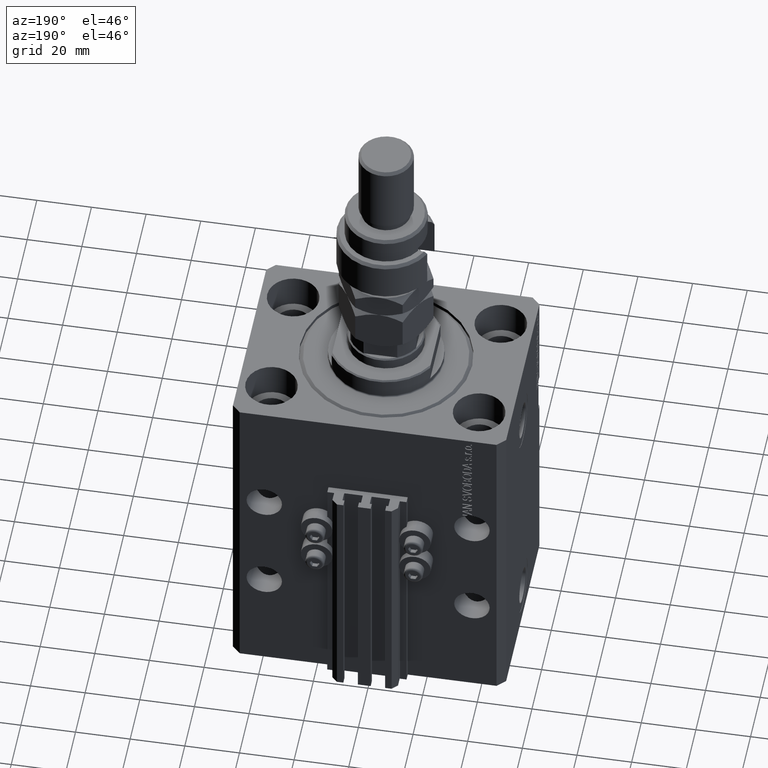
[diagram: clean part render]
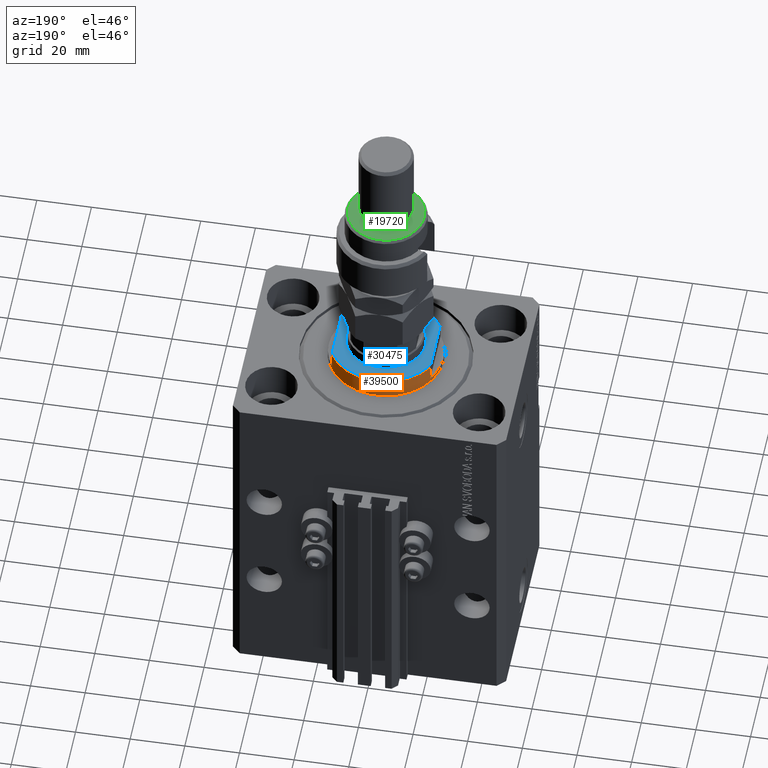
[diagram: same view with three faces highlighted in distinct colors, each labeled with its STEP entity id]
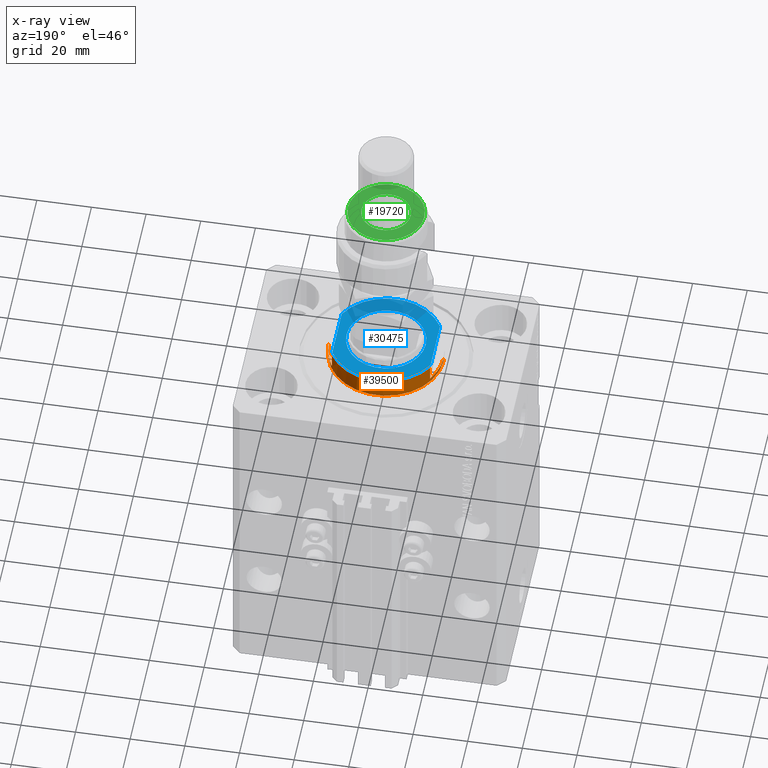
[diagram: x-ray of the same camera — body ghosted, the three highlighted faces saturated]
A machine part, auxiliary view with three faces highlighted in distinct colors.
The next image is the same camera in x-ray (body ghosted, the three faces saturated) — at least one of them is partly hidden behind the body in this view.
Their STEP definitions:

[orange] entity #39500 — the highlighted cylindrical surface (partial cylindrical patch) has radius 21 mm, axis along (0, 0, -1).
#304 = CARTESIAN_POINT ( 'NONE',  ( 21.00000000000000000, 0.000000000000000000, -8.000000000000000000 ) ) ;
#770 = DIRECTION ( 'NONE',  ( -0.000000000000000000, -0.000000000000000000, 1.000000000000000000 ) ) ;
#1752 = DIRECTION ( 'NONE',  ( -1.000000000000000000, 0.000000000000000000, 0.000000000000000000 ) ) ;
#2416 = ORIENTED_EDGE ( 'NONE', *, *, #39288, .T. ) ;
#3016 = DIRECTION ( 'NONE',  ( -0.000000000000000000, -0.000000000000000000, 1.000000000000000000 ) ) ;
#3527 = LINE ( 'NONE', #3777, #37052 ) ;
#3777 = CARTESIAN_POINT ( 'NONE',  ( -21.00000000000000000, 2.571758278209441661E-15, -8.000000000000000000 ) ) ;
#4289 = CARTESIAN_POINT ( 'NONE',  ( 0.000000000000000000, 0.000000000000000000, -2.000000000000000000 ) ) ;
#6245 = CARTESIAN_POINT ( 'NONE',  ( 18.00000000000000000, 10.81665382639197048, -7.500000000000016875 ) ) ;
#6591 = VERTEX_POINT ( 'NONE', #15605 ) ;
#6600 = CARTESIAN_POINT ( 'NONE',  ( -18.00000000000000000, 10.81665382639197048, -2.000000000000000000 ) ) ;
#6964 = AXIS2_PLACEMENT_3D ( 'NONE', #18101, #33489, #34008 ) ;
#6979 = DIRECTION ( 'NONE',  ( -0.000000000000000000, -0.000000000000000000, 1.000000000000000000 ) ) ;
#9525 = CARTESIAN_POINT ( 'NONE',  ( 0.000000000000000000, 0.000000000000000000, -0.5000000000000004441 ) ) ;
#9574 = CIRCLE ( 'NONE', #10382, 21.00000000000000000 ) ;
#10382 = AXIS2_PLACEMENT_3D ( 'NONE', #9525, #49176, #45794 ) ;
#11893 = CYLINDRICAL_SURFACE ( 'NONE', #27830, 21.00000000000000000 ) ;
#12431 = VERTEX_POINT ( 'NONE', #6245 ) ;
#12745 = CIRCLE ( 'NONE', #21897, 21.00000000000000000 ) ;
#12995 = LINE ( 'NONE', #37253, #17026 ) ;
#14977 = ORIENTED_EDGE ( 'NONE', *, *, #37635, .T. ) ;
#15605 = CARTESIAN_POINT ( 'NONE',  ( -18.00000000000000000, 10.81665382639197048, -7.500000000000016875 ) ) ;
#16255 = VERTEX_POINT ( 'NONE', #50721 ) ;
#17026 = VECTOR ( 'NONE', #770, 1000.000000000000000 ) ;
#17460 = EDGE_CURVE ( 'NONE', #44590, #46610, #12745, .T. ) ;
#17492 = VERTEX_POINT ( 'NONE', #6600 ) ;
#18101 = CARTESIAN_POINT ( 'NONE',  ( 0.000000000000000000, 0.000000000000000000, -7.500000000000016875 ) ) ;
#19509 = VECTOR ( 'NONE', #6979, 1000.000000000000000 ) ;
#19913 = DIRECTION ( 'NONE',  ( -1.000000000000000000, 0.000000000000000000, 0.000000000000000000 ) ) ;
#21897 = AXIS2_PLACEMENT_3D ( 'NONE', #29097, #37456, #1752 ) ;
#21913 = DIRECTION ( 'NONE',  ( -0.000000000000000000, -0.000000000000000000, 1.000000000000000000 ) ) ;
#22239 = ORIENTED_EDGE ( 'NONE', *, *, #28836, .F. ) ;
#23600 = CIRCLE ( 'NONE', #6964, 21.00000000000000000 ) ;
#23820 = DIRECTION ( 'NONE',  ( 0.000000000000000000, 0.000000000000000000, -1.000000000000000000 ) ) ;
#25832 = LINE ( 'NONE', #42014, #32577 ) ;
#27788 = DIRECTION ( 'NONE',  ( -0.000000000000000000, -0.000000000000000000, 1.000000000000000000 ) ) ;
#27830 = AXIS2_PLACEMENT_3D ( 'NONE', #31198, #27788, #43213 ) ;
#27854 = CIRCLE ( 'NONE', #50387, 21.00000000000000000 ) ;
#28836 = EDGE_CURVE ( 'NONE', #12431, #44590, #25832, .T. ) ;
#29097 = CARTESIAN_POINT ( 'NONE',  ( 0.000000000000000000, 0.000000000000000000, -2.000000000000000000 ) ) ;
#30389 = CARTESIAN_POINT ( 'NONE',  ( -21.00000000000000000, 2.571758278209441661E-15, -0.5000000000000004441 ) ) ;
#31198 = CARTESIAN_POINT ( 'NONE',  ( 0.000000000000000000, 0.000000000000000000, -8.000000000000000000 ) ) ;
#31861 = ORIENTED_EDGE ( 'NONE', *, *, #17460, .F. ) ;
#32577 = VECTOR ( 'NONE', #21913, 1000.000000000000000 ) ;
#33489 = DIRECTION ( 'NONE',  ( 0.000000000000000000, 0.000000000000000000, 1.000000000000000000 ) ) ;
#33542 = VERTEX_POINT ( 'NONE', #30389 ) ;
#34008 = DIRECTION ( 'NONE',  ( -1.000000000000000000, 0.000000000000000000, 0.000000000000000000 ) ) ;
#34144 = ORIENTED_EDGE ( 'NONE', *, *, #47399, .F. ) ;
#34162 = ORIENTED_EDGE ( 'NONE', *, *, #38731, .F. ) ;
#34183 = CARTESIAN_POINT ( 'NONE',  ( 21.00000000000000000, 0.000000000000000000, -0.5000000000000004441 ) ) ;
#36013 = LINE ( 'NONE', #304, #19509 ) ;
#37052 = VECTOR ( 'NONE', #3016, 1000.000000000000000 ) ;
#37253 = CARTESIAN_POINT ( 'NONE',  ( -18.00000000000000000, 10.81665382639197048, -8.000000000000000000 ) ) ;
#37456 = DIRECTION ( 'NONE',  ( 0.000000000000000000, 0.000000000000000000, -1.000000000000000000 ) ) ;
#37635 = EDGE_CURVE ( 'NONE', #12431, #6591, #23600, .T. ) ;
#38731 = EDGE_CURVE ( 'NONE', #46610, #46192, #36013, .T. ) ;
#39288 = EDGE_CURVE ( 'NONE', #6591, #17492, #12995, .T. ) ;
#39500 = ADVANCED_FACE ( 'NONE', ( #46877 ), #11893, .T. ) ;
#42014 = CARTESIAN_POINT ( 'NONE',  ( 18.00000000000000000, 10.81665382639197048, -8.000000000000000000 ) ) ;
#43213 = DIRECTION ( 'NONE',  ( 1.000000000000000000, 0.000000000000000000, 0.000000000000000000 ) ) ;
#43361 = ORIENTED_EDGE ( 'NONE', *, *, #47326, .T. ) ;
#44504 = CARTESIAN_POINT ( 'NONE',  ( 18.00000000000000000, 10.81665382639197048, -2.000000000000000000 ) ) ;
#44590 = VERTEX_POINT ( 'NONE', #44504 ) ;
#45794 = DIRECTION ( 'NONE',  ( 1.000000000000000000, 0.000000000000000000, 0.000000000000000000 ) ) ;
#46192 = VERTEX_POINT ( 'NONE', #34183 ) ;
#46610 = VERTEX_POINT ( 'NONE', #47608 ) ;
#46877 = FACE_OUTER_BOUND ( 'NONE', #49546, .T. ) ;
#47283 = EDGE_CURVE ( 'NONE', #33542, #46192, #9574, .T. ) ;
#47326 = EDGE_CURVE ( 'NONE', #16255, #33542, #3527, .T. ) ;
#47399 = EDGE_CURVE ( 'NONE', #16255, #17492, #27854, .T. ) ;
#47608 = CARTESIAN_POINT ( 'NONE',  ( 21.00000000000000000, 0.000000000000000000, -2.000000000000000000 ) ) ;
#49176 = DIRECTION ( 'NONE',  ( -0.000000000000000000, -0.000000000000000000, -1.000000000000000000 ) ) ;
#49546 = EDGE_LOOP ( 'NONE', ( #34144, #43361, #50164, #34162, #31861, #22239, #14977, #2416 ) ) ;
#50164 = ORIENTED_EDGE ( 'NONE', *, *, #47283, .T. ) ;
#50387 = AXIS2_PLACEMENT_3D ( 'NONE', #4289, #23820, #19913 ) ;
#50721 = CARTESIAN_POINT ( 'NONE',  ( -21.00000000000000000, 2.571758278209441661E-15, -2.000000000000000000 ) ) ;

[blue] entity #30475 — the highlighted planar face has unit normal (0, 0, 1).
#2128 = AXIS2_PLACEMENT_3D ( 'NONE', #14432, #46275, #10258 ) ;
#2444 = EDGE_LOOP ( 'NONE', ( #24300, #13134, #7355, #41830 ) ) ;
#3155 = DIRECTION ( 'NONE',  ( 0.000000000000000000, -1.000000000000000000, -0.000000000000000000 ) ) ;
#4647 = FACE_BOUND ( 'NONE', #37662, .T. ) ;
#7355 = ORIENTED_EDGE ( 'NONE', *, *, #8114, .T. ) ;
#8030 = DIRECTION ( 'NONE',  ( -1.000000000000000000, 0.000000000000000000, -0.000000000000000000 ) ) ;
#8114 = EDGE_CURVE ( 'NONE', #27491, #23564, #49221, .T. ) ;
#9585 = EDGE_CURVE ( 'NONE', #27847, #35387, #40906, .T. ) ;
#10258 = DIRECTION ( 'NONE',  ( -1.000000000000000000, 0.000000000000000000, 0.000000000000000000 ) ) ;
#11595 = DIRECTION ( 'NONE',  ( -0.000000000000000000, -0.000000000000000000, 1.000000000000000000 ) ) ;
#12111 = LINE ( 'NONE', #43671, #25946 ) ;
#13134 = ORIENTED_EDGE ( 'NONE', *, *, #28986, .T. ) ;
#14432 = CARTESIAN_POINT ( 'NONE',  ( 0.000000000000000000, 0.000000000000000000, -8.000000000000000000 ) ) ;
#16534 = DIRECTION ( 'NONE',  ( -0.000000000000000000, -1.000000000000000000, -0.000000000000000000 ) ) ;
#19290 = LINE ( 'NONE', #35206, #22551 ) ;
#19349 = DIRECTION ( 'NONE',  ( -0.000000000000000000, -0.000000000000000000, 1.000000000000000000 ) ) ;
#19637 = VERTEX_POINT ( 'NONE', #24133 ) ;
#19759 = FACE_OUTER_BOUND ( 'NONE', #2444, .T. ) ;
#21184 = EDGE_CURVE ( 'NONE', #35387, #27847, #50613, .T. ) ;
#22551 = VECTOR ( 'NONE', #3155, 1000.000000000000000 ) ;
#23245 = DIRECTION ( 'NONE',  ( -1.000000000000000000, 0.000000000000000000, 0.000000000000000000 ) ) ;
#23564 = VERTEX_POINT ( 'NONE', #31948 ) ;
#24133 = CARTESIAN_POINT ( 'NONE',  ( 18.00000000000000000, 9.810708435174332109, -8.000000000000000000 ) ) ;
#24206 = AXIS2_PLACEMENT_3D ( 'NONE', #30901, #11595, #35340 ) ;
#24300 = ORIENTED_EDGE ( 'NONE', *, *, #40850, .T. ) ;
#24537 = ORIENTED_EDGE ( 'NONE', *, *, #21184, .T. ) ;
#25357 = VERTEX_POINT ( 'NONE', #49170 ) ;
#25866 = AXIS2_PLACEMENT_3D ( 'NONE', #43590, #35768, #51430 ) ;
#25946 = VECTOR ( 'NONE', #16534, 1000.000000000000000 ) ;
#27477 = CARTESIAN_POINT ( 'NONE',  ( 18.00000000000000000, -9.810708435174332109, -8.000000000000000000 ) ) ;
#27491 = VERTEX_POINT ( 'NONE', #27477 ) ;
#27847 = VERTEX_POINT ( 'NONE', #41747 ) ;
#28603 = CARTESIAN_POINT ( 'NONE',  ( 0.000000000000000000, 0.000000000000000000, -8.000000000000000000 ) ) ;
#28986 = EDGE_CURVE ( 'NONE', #19637, #27491, #19290, .T. ) ;
#29712 = CARTESIAN_POINT ( 'NONE',  ( -14.49999999999999822, 0.000000000000000000, -8.000000000000000000 ) ) ;
#30475 = ADVANCED_FACE ( 'NONE', ( #4647, #19759 ), #51585, .T. ) ;
#30758 = ORIENTED_EDGE ( 'NONE', *, *, #9585, .T. ) ;
#30901 = CARTESIAN_POINT ( 'NONE',  ( 0.000000000000000000, 0.000000000000000000, -8.000000000000000000 ) ) ;
#31677 = AXIS2_PLACEMENT_3D ( 'NONE', #28603, #47677, #8030 ) ;
#31948 = CARTESIAN_POINT ( 'NONE',  ( -18.00000000000000000, -9.810708435174332109, -8.000000000000000000 ) ) ;
#33671 = EDGE_CURVE ( 'NONE', #25357, #23564, #12111, .T. ) ;
#35206 = CARTESIAN_POINT ( 'NONE',  ( 18.00000000000000000, -41.24318125460256113, -8.000000000000000000 ) ) ;
#35340 = DIRECTION ( 'NONE',  ( -1.000000000000000000, 0.000000000000000000, 0.000000000000000000 ) ) ;
#35387 = VERTEX_POINT ( 'NONE', #29712 ) ;
#35768 = DIRECTION ( 'NONE',  ( 0.000000000000000000, 0.000000000000000000, -1.000000000000000000 ) ) ;
#37662 = EDGE_LOOP ( 'NONE', ( #24537, #30758 ) ) ;
#38411 = CARTESIAN_POINT ( 'NONE',  ( 0.000000000000000000, 0.000000000000000000, -8.000000000000000000 ) ) ;
#39585 = CIRCLE ( 'NONE', #2128, 20.50000000000001776 ) ;
#40850 = EDGE_CURVE ( 'NONE', #25357, #19637, #39585, .T. ) ;
#40906 = CIRCLE ( 'NONE', #24206, 14.49999999999999822 ) ;
#41747 = CARTESIAN_POINT ( 'NONE',  ( 14.49999999999999822, 1.775737858763662015E-15, -8.000000000000000000 ) ) ;
#41830 = ORIENTED_EDGE ( 'NONE', *, *, #33671, .F. ) ;
#43590 = CARTESIAN_POINT ( 'NONE',  ( 0.000000000000000000, 0.000000000000000000, -8.000000000000000000 ) ) ;
#43671 = CARTESIAN_POINT ( 'NONE',  ( -18.00000000000000000, -41.24318125460256113, -8.000000000000000000 ) ) ;
#43959 = AXIS2_PLACEMENT_3D ( 'NONE', #38411, #19349, #23245 ) ;
#46275 = DIRECTION ( 'NONE',  ( 0.000000000000000000, 0.000000000000000000, -1.000000000000000000 ) ) ;
#47677 = DIRECTION ( 'NONE',  ( 0.000000000000000000, 0.000000000000000000, -1.000000000000000000 ) ) ;
#49170 = CARTESIAN_POINT ( 'NONE',  ( -18.00000000000000000, 9.810708435174332109, -8.000000000000000000 ) ) ;
#49221 = CIRCLE ( 'NONE', #25866, 20.50000000000001776 ) ;
#50613 = CIRCLE ( 'NONE', #43959, 14.49999999999999822 ) ;
#51430 = DIRECTION ( 'NONE',  ( -1.000000000000000000, 0.000000000000000000, 0.000000000000000000 ) ) ;
#51585 = PLANE ( 'NONE',  #31677 ) ;

[green] entity #19720 — the highlighted planar face has unit normal (0, 0, 1).
#1741 = DIRECTION ( 'NONE',  ( 1.000000000000000000, 0.000000000000000000, 0.000000000000000000 ) ) ;
#2225 = DIRECTION ( 'NONE',  ( 1.000000000000000000, 0.000000000000000000, 0.000000000000000000 ) ) ;
#2505 = DIRECTION ( 'NONE',  ( 0.000000000000000000, 0.000000000000000000, 1.000000000000000000 ) ) ;
#3510 = CIRCLE ( 'NONE', #21779, 9.000000000000000000 ) ;
#4637 = AXIS2_PLACEMENT_3D ( 'NONE', #25689, #41614, #1741 ) ;
#5690 = CIRCLE ( 'NONE', #38149, 9.000000000000000000 ) ;
#5884 = CARTESIAN_POINT ( 'NONE',  ( 0.000000000000000000, 0.000000000000000000, 26.00000000000000355 ) ) ;
#9203 = CARTESIAN_POINT ( 'NONE',  ( 0.000000000000000000, 0.000000000000000000, 26.00000000000000355 ) ) ;
#9524 = FACE_OUTER_BOUND ( 'NONE', #48374, .T. ) ;
#10067 = ORIENTED_EDGE ( 'NONE', *, *, #29979, .F. ) ;
#13441 = FACE_BOUND ( 'NONE', #20370, .T. ) ;
#13854 = CARTESIAN_POINT ( 'NONE',  ( -13.99999999999997513, 0.000000000000000000, 26.00000000000000355 ) ) ;
#14054 = CARTESIAN_POINT ( 'NONE',  ( 0.000000000000000000, 0.000000000000000000, 26.00000000000000355 ) ) ;
#17025 = DIRECTION ( 'NONE',  ( 0.000000000000000000, 0.000000000000000000, 1.000000000000000000 ) ) ;
#17091 = AXIS2_PLACEMENT_3D ( 'NONE', #5884, #2505, #25683 ) ;
#18370 = PLANE ( 'NONE',  #17091 ) ;
#18499 = VERTEX_POINT ( 'NONE', #42922 ) ;
#19720 = ADVANCED_FACE ( 'NONE', ( #9524, #13441 ), #18370, .T. ) ;
#20370 = EDGE_LOOP ( 'NONE', ( #10067, #44476 ) ) ;
#21607 = DIRECTION ( 'NONE',  ( 0.000000000000000000, 0.000000000000000000, 1.000000000000000000 ) ) ;
#21779 = AXIS2_PLACEMENT_3D ( 'NONE', #22499, #21991, #2225 ) ;
#21956 = EDGE_CURVE ( 'NONE', #18499, #44272, #5690, .T. ) ;
#21991 = DIRECTION ( 'NONE',  ( 0.000000000000000000, 0.000000000000000000, 1.000000000000000000 ) ) ;
#22499 = CARTESIAN_POINT ( 'NONE',  ( 0.000000000000000000, 0.000000000000000000, 26.00000000000000355 ) ) ;
#22851 = CARTESIAN_POINT ( 'NONE',  ( -9.000000000000000000, 0.000000000000000000, 26.00000000000000355 ) ) ;
#25683 = DIRECTION ( 'NONE',  ( 1.000000000000000000, 0.000000000000000000, -0.000000000000000000 ) ) ;
#25689 = CARTESIAN_POINT ( 'NONE',  ( 0.000000000000000000, 0.000000000000000000, 26.00000000000000355 ) ) ;
#25696 = EDGE_CURVE ( 'NONE', #26022, #50792, #25808, .T. ) ;
#25808 = CIRCLE ( 'NONE', #26617, 13.99999999999997513 ) ;
#26022 = VERTEX_POINT ( 'NONE', #42250 ) ;
#26617 = AXIS2_PLACEMENT_3D ( 'NONE', #9203, #17025, #41024 ) ;
#29979 = EDGE_CURVE ( 'NONE', #44272, #18499, #3510, .T. ) ;
#35646 = ORIENTED_EDGE ( 'NONE', *, *, #25696, .T. ) ;
#36763 = DIRECTION ( 'NONE',  ( 1.000000000000000000, 0.000000000000000000, 0.000000000000000000 ) ) ;
#38149 = AXIS2_PLACEMENT_3D ( 'NONE', #14054, #21607, #36763 ) ;
#41024 = DIRECTION ( 'NONE',  ( 1.000000000000000000, 0.000000000000000000, 0.000000000000000000 ) ) ;
#41614 = DIRECTION ( 'NONE',  ( 0.000000000000000000, 0.000000000000000000, 1.000000000000000000 ) ) ;
#42250 = CARTESIAN_POINT ( 'NONE',  ( 13.99999999999997513, 1.775737858763660437E-15, 26.00000000000000355 ) ) ;
#42922 = CARTESIAN_POINT ( 'NONE',  ( 9.000000000000000000, 1.102182119232617714E-15, 26.00000000000000355 ) ) ;
#44272 = VERTEX_POINT ( 'NONE', #22851 ) ;
#44476 = ORIENTED_EDGE ( 'NONE', *, *, #21956, .F. ) ;
#46265 = CIRCLE ( 'NONE', #4637, 13.99999999999997513 ) ;
#48145 = EDGE_CURVE ( 'NONE', #50792, #26022, #46265, .T. ) ;
#48374 = EDGE_LOOP ( 'NONE', ( #50296, #35646 ) ) ;
#50296 = ORIENTED_EDGE ( 'NONE', *, *, #48145, .T. ) ;
#50792 = VERTEX_POINT ( 'NONE', #13854 ) ;